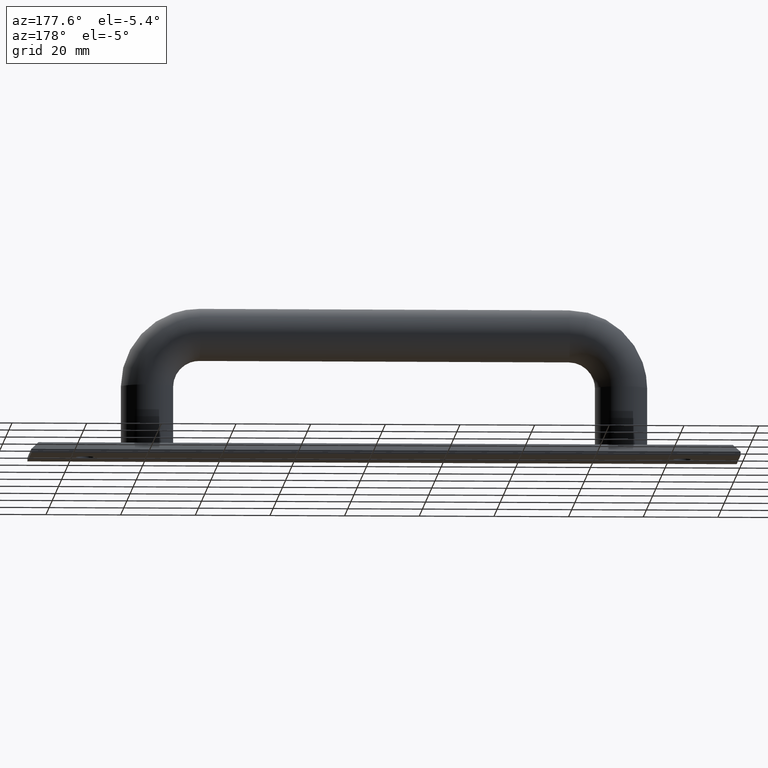
[diagram: clean part render]
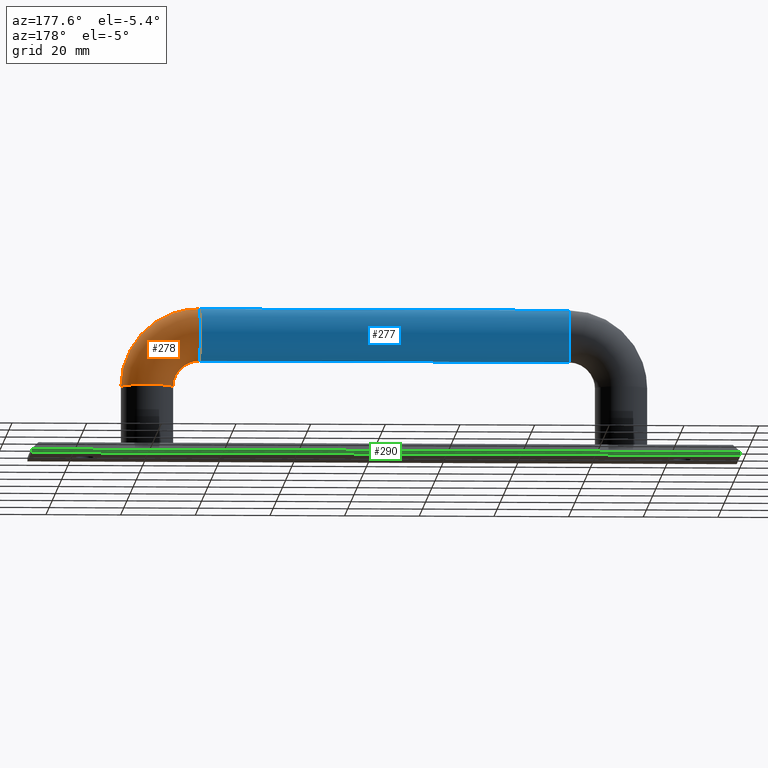
[diagram: same view with three faces highlighted in distinct colors, each labeled with its STEP entity id]
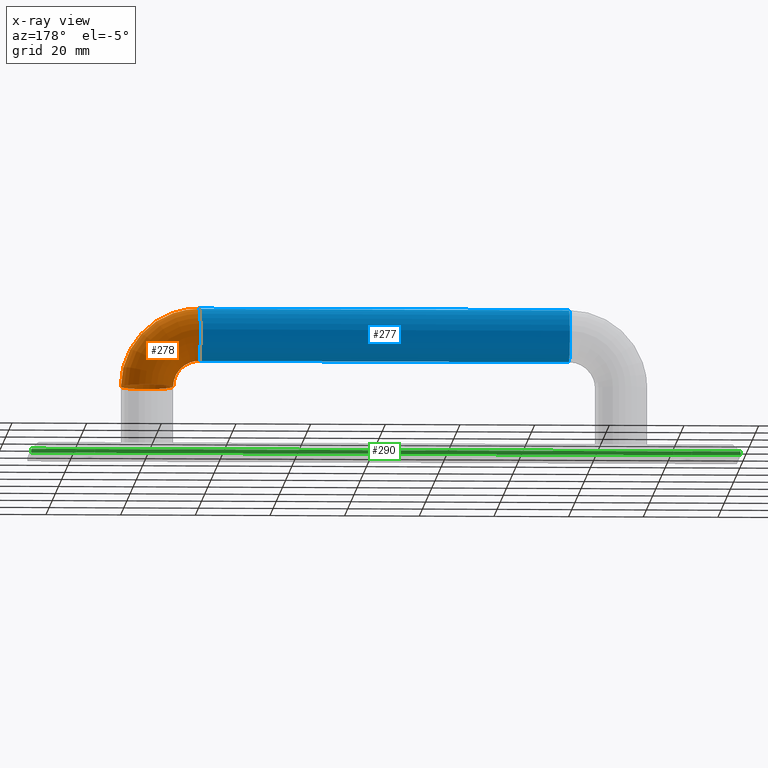
[diagram: x-ray of the same camera — body ghosted, the three highlighted faces saturated]
A machine part, auxiliary view with three faces highlighted in distinct colors.
The next image is the same camera in x-ray (body ghosted, the three faces saturated) — at least one of them is partly hidden behind the body in this view.
Their STEP definitions:

[orange] entity #278 — the highlighted toroidal blend (fillet) surface has major radius 14 mm and minor (blend) radius 7 mm.
#68=TOROIDAL_SURFACE('',#305,14.,7.);
#73=FACE_BOUND('',#112,.T.);
#88=FACE_OUTER_BOUND('',#111,.T.);
#111=EDGE_LOOP('',(#213));
#112=EDGE_LOOP('',(#214));
#139=CIRCLE('',#299,7.);
#142=CIRCLE('',#304,7.);
#151=VERTEX_POINT('',#417);
#154=VERTEX_POINT('',#425);
#175=EDGE_CURVE('',#151,#151,#139,.T.);
#178=EDGE_CURVE('',#154,#154,#142,.T.);
#213=ORIENTED_EDGE('',*,*,#178,.T.);
#214=ORIENTED_EDGE('',*,*,#175,.F.);
#278=ADVANCED_FACE('',(#88,#73),#68,.T.);
#299=AXIS2_PLACEMENT_3D('',#418,#336,#337);
#304=AXIS2_PLACEMENT_3D('',#426,#346,#347);
#305=AXIS2_PLACEMENT_3D('',#427,#348,#349);
#336=DIRECTION('center_axis',(9.34924652315921E-16,0.,-1.));
#337=DIRECTION('ref_axis',(-1.,0.,-9.34924652315921E-16));
#346=DIRECTION('center_axis',(1.,0.,1.25213123078025E-15));
#347=DIRECTION('ref_axis',(1.25213123078025E-15,0.,-1.));
#348=DIRECTION('center_axis',(0.,-1.,0.));
#349=DIRECTION('ref_axis',(0.,0.,-1.));
#417=CARTESIAN_POINT('',(165.5,12.5,19.));
#418=CARTESIAN_POINT('Origin',(158.5,12.5,19.));
#425=CARTESIAN_POINT('',(144.5,12.5,40.));
#426=CARTESIAN_POINT('Origin',(144.5,12.5,33.));
#427=CARTESIAN_POINT('Origin',(144.5,12.5,19.));

[blue] entity #277 — the highlighted cylindrical surface (bore or boss wall) has radius 7 mm, axis along (-1, 0, 0).
#72=FACE_BOUND('',#110,.T.);
#87=FACE_OUTER_BOUND('',#109,.T.);
#109=EDGE_LOOP('',(#211));
#110=EDGE_LOOP('',(#212));
#141=CIRCLE('',#302,7.);
#142=CIRCLE('',#304,7.);
#153=VERTEX_POINT('',#422);
#154=VERTEX_POINT('',#425);
#177=EDGE_CURVE('',#153,#153,#141,.T.);
#178=EDGE_CURVE('',#154,#154,#142,.T.);
#211=ORIENTED_EDGE('',*,*,#177,.T.);
#212=ORIENTED_EDGE('',*,*,#178,.F.);
#271=CYLINDRICAL_SURFACE('',#303,7.);
#277=ADVANCED_FACE('',(#87,#72),#271,.T.);
#302=AXIS2_PLACEMENT_3D('',#423,#342,#343);
#303=AXIS2_PLACEMENT_3D('',#424,#344,#345);
#304=AXIS2_PLACEMENT_3D('',#426,#346,#347);
#342=DIRECTION('center_axis',(1.,0.,1.25213123078025E-15));
#343=DIRECTION('ref_axis',(1.25213123078025E-15,0.,-1.));
#344=DIRECTION('center_axis',(-1.,0.,3.14002471611155E-16));
#345=DIRECTION('ref_axis',(-3.14002471611156E-16,0.,-1.));
#346=DIRECTION('center_axis',(1.,0.,1.25213123078025E-15));
#347=DIRECTION('ref_axis',(1.25213123078025E-15,0.,-1.));
#422=CARTESIAN_POINT('',(45.5,12.5,40.));
#423=CARTESIAN_POINT('Origin',(45.5,12.5,33.));
#424=CARTESIAN_POINT('Origin',(144.5,12.5,33.));
#425=CARTESIAN_POINT('',(144.5,12.5,40.));
#426=CARTESIAN_POINT('Origin',(144.5,12.5,33.));

[green] entity #290 — the highlighted planar face has unit normal (0, 1, 0).
#30=LINE('',#460,#50);
#31=LINE('',#463,#51);
#34=LINE('',#468,#54);
#35=LINE('',#482,#55);
#50=VECTOR('',#377,1.);
#51=VECTOR('',#380,1.);
#54=VECTOR('',#385,190.);
#55=VECTOR('',#404,190.);
#64=PLANE('',#323);
#100=FACE_OUTER_BOUND('',#132,.T.);
#132=EDGE_LOOP('',(#255,#256,#257,#258));
#158=VERTEX_POINT('',#434);
#164=VERTEX_POINT('',#452);
#166=VERTEX_POINT('',#458);
#167=VERTEX_POINT('',#462);
#194=EDGE_CURVE('',#166,#164,#30,.T.);
#195=EDGE_CURVE('',#167,#158,#31,.T.);
#198=EDGE_CURVE('',#164,#158,#34,.T.);
#203=EDGE_CURVE('',#166,#167,#35,.T.);
#255=ORIENTED_EDGE('',*,*,#198,.F.);
#256=ORIENTED_EDGE('',*,*,#194,.F.);
#257=ORIENTED_EDGE('',*,*,#203,.T.);
#258=ORIENTED_EDGE('',*,*,#195,.T.);
#290=ADVANCED_FACE('',(#100),#64,.T.);
#323=AXIS2_PLACEMENT_3D('',#481,#402,#403);
#377=DIRECTION('',(0.,0.,1.));
#380=DIRECTION('',(0.,0.,1.));
#385=DIRECTION('',(-1.,0.,0.));
#402=DIRECTION('center_axis',(0.,1.,0.));
#403=DIRECTION('ref_axis',(-1.,0.,0.));
#404=DIRECTION('',(-1.,0.,0.));
#434=CARTESIAN_POINT('',(0.,25.,1.));
#452=CARTESIAN_POINT('',(190.,25.,1.));
#458=CARTESIAN_POINT('',(190.,25.,0.));
#460=CARTESIAN_POINT('',(190.,25.,0.));
#462=CARTESIAN_POINT('',(0.,25.,0.));
#463=CARTESIAN_POINT('',(0.,25.,0.));
#468=CARTESIAN_POINT('',(142.5,25.,1.));
#481=CARTESIAN_POINT('Origin',(190.,25.,0.));
#482=CARTESIAN_POINT('',(190.,25.,0.));